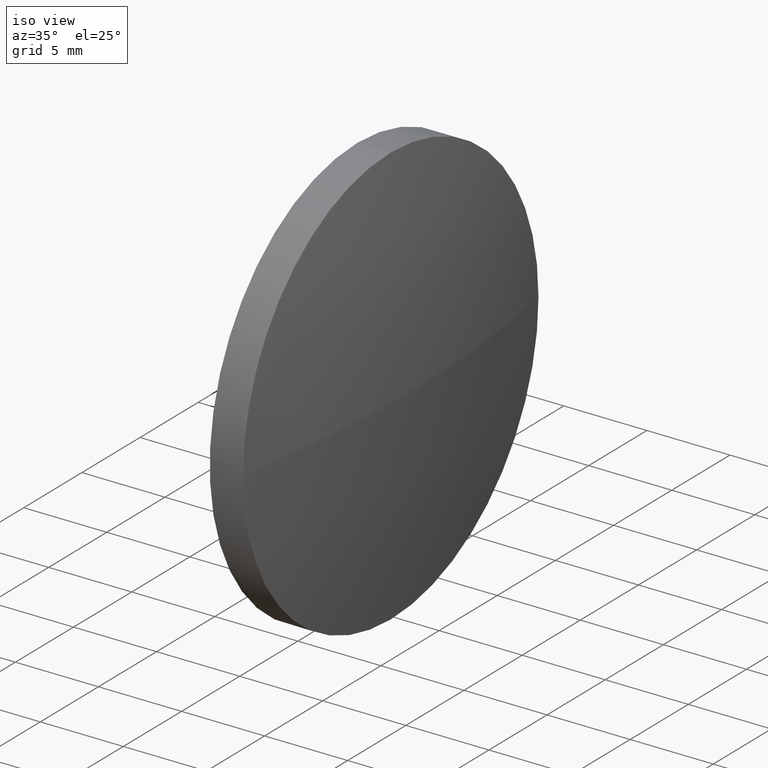
[diagram: clean part render]
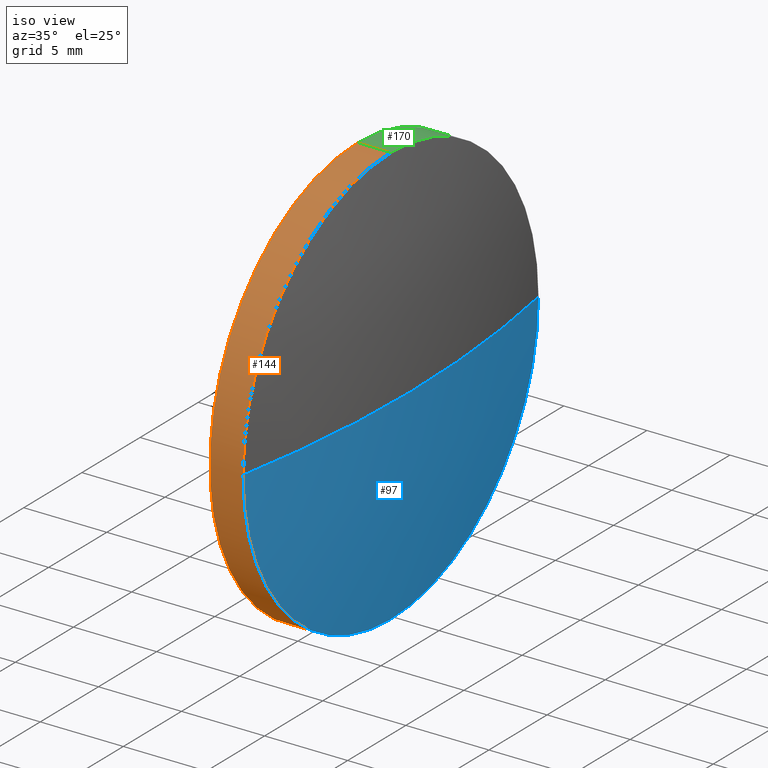
[diagram: same view with three faces highlighted in distinct colors, each labeled with its STEP entity id]
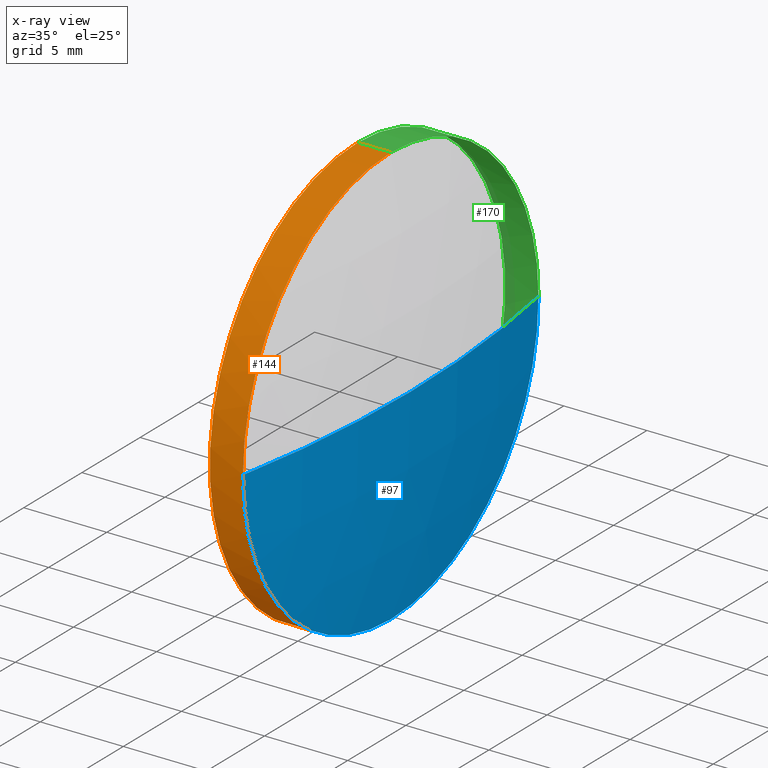
[diagram: x-ray of the same camera — body ghosted, the three highlighted faces saturated]
A machine part, iso view with three faces highlighted in distinct colors.
The next image is the same camera in x-ray (body ghosted, the three faces saturated) — at least one of them is partly hidden behind the body in this view.
Their STEP definitions:

[orange] entity #144 — the highlighted cylindrical surface (partial cylindrical patch) has radius 12.7 mm, axis along (-1, -0, -0).
#8 = CARTESIAN_POINT ( 'NONE',  ( 610.2638272771673700, 203.7470888787178500, 12.70000000000001700 ) ) ;
#9 = AXIS2_PLACEMENT_3D ( 'NONE', #133, #177, #21 ) ;
#10 = CARTESIAN_POINT ( 'NONE',  ( 617.9685008246222000, 203.7470888787178500, -12.70000000000001700 ) ) ;
#19 = CARTESIAN_POINT ( 'NONE',  ( 615.9685008246222000, 203.7470888787178500, 12.70000000000001700 ) ) ;
#21 = DIRECTION ( 'NONE',  ( 0.0000000000000000000, 0.0000000000000000000, 1.000000000000000000 ) ) ;
#27 = EDGE_CURVE ( 'NONE', #150, #35, #111, .T. ) ;
#29 = VECTOR ( 'NONE', #87, 1000.000000000000000 ) ;
#30 = ORIENTED_EDGE ( 'NONE', *, *, #40, .F. ) ;
#35 = VERTEX_POINT ( 'NONE', #179 ) ;
#37 = CARTESIAN_POINT ( 'NONE',  ( 617.9685008246222000, 203.7470888787178500, 0.0000000000000000000 ) ) ;
#39 = VECTOR ( 'NONE', #178, 1000.000000000000000 ) ;
#40 = EDGE_CURVE ( 'NONE', #43, #85, #156, .T. ) ;
#43 = VERTEX_POINT ( 'NONE', #48 ) ;
#48 = CARTESIAN_POINT ( 'NONE',  ( 615.9685008246222000, 203.7470888787178500, -12.70000000000001700 ) ) ;
#58 = ORIENTED_EDGE ( 'NONE', *, *, #112, .T. ) ;
#61 = DIRECTION ( 'NONE',  ( -1.000000000000000000, -0.0000000000000000000, -0.0000000000000000000 ) ) ;
#63 = AXIS2_PLACEMENT_3D ( 'NONE', #104, #118, #136 ) ;
#66 = LINE ( 'NONE', #86, #29 ) ;
#69 = EDGE_CURVE ( 'NONE', #114, #43, #66, .T. ) ;
#73 = LINE ( 'NONE', #8, #39 ) ;
#79 = CYLINDRICAL_SURFACE ( 'NONE', #116, 12.70000000000001700 ) ;
#85 = VERTEX_POINT ( 'NONE', #19 ) ;
#86 = CARTESIAN_POINT ( 'NONE',  ( 610.2638272771673700, 203.7470888787178500, -12.70000000000001700 ) ) ;
#87 = DIRECTION ( 'NONE',  ( -1.000000000000000000, -0.0000000000000000000, -0.0000000000000000000 ) ) ;
#104 = CARTESIAN_POINT ( 'NONE',  ( 617.9685008246222000, 203.7470888787178500, 0.0000000000000000000 ) ) ;
#106 = AXIS2_PLACEMENT_3D ( 'NONE', #37, #109, #153 ) ;
#109 = DIRECTION ( 'NONE',  ( -1.000000000000000000, -0.0000000000000000000, -0.0000000000000000000 ) ) ;
#111 = CIRCLE ( 'NONE', #63, 12.70000000000001700 ) ;
#112 = EDGE_CURVE ( 'NONE', #35, #85, #73, .T. ) ;
#114 = VERTEX_POINT ( 'NONE', #10 ) ;
#116 = AXIS2_PLACEMENT_3D ( 'NONE', #182, #61, #126 ) ;
#117 = EDGE_CURVE ( 'NONE', #114, #150, #159, .T. ) ;
#118 = DIRECTION ( 'NONE',  ( -1.000000000000000000, -0.0000000000000000000, -0.0000000000000000000 ) ) ;
#119 = ORIENTED_EDGE ( 'NONE', *, *, #117, .T. ) ;
#126 = DIRECTION ( 'NONE',  ( 0.0000000000000000000, 0.0000000000000000000, 1.000000000000000000 ) ) ;
#131 = ORIENTED_EDGE ( 'NONE', *, *, #27, .T. ) ;
#133 = CARTESIAN_POINT ( 'NONE',  ( 615.9685008246222000, 203.7470888787178500, 0.0000000000000000000 ) ) ;
#135 = FACE_OUTER_BOUND ( 'NONE', #172, .T. ) ;
#136 = DIRECTION ( 'NONE',  ( 0.0000000000000000000, 0.0000000000000000000, 1.000000000000000000 ) ) ;
#144 = ADVANCED_FACE ( 'NONE', ( #135 ), #79, .T. ) ;
#150 = VERTEX_POINT ( 'NONE', #152 ) ;
#152 = CARTESIAN_POINT ( 'NONE',  ( 617.9685008246222000, 191.0470888787178600, 0.0000000000000000000 ) ) ;
#153 = DIRECTION ( 'NONE',  ( 0.0000000000000000000, 0.0000000000000000000, 1.000000000000000000 ) ) ;
#156 = CIRCLE ( 'NONE', #9, 12.70000000000001700 ) ;
#158 = ORIENTED_EDGE ( 'NONE', *, *, #69, .F. ) ;
#159 = CIRCLE ( 'NONE', #106, 12.70000000000001700 ) ;
#172 = EDGE_LOOP ( 'NONE', ( #158, #119, #131, #58, #30 ) ) ;
#177 = DIRECTION ( 'NONE',  ( -1.000000000000000000, -0.0000000000000000000, -0.0000000000000000000 ) ) ;
#178 = DIRECTION ( 'NONE',  ( -1.000000000000000000, -0.0000000000000000000, -0.0000000000000000000 ) ) ;
#179 = CARTESIAN_POINT ( 'NONE',  ( 617.9685008246222000, 203.7470888787178500, 12.70000000000001700 ) ) ;
#182 = CARTESIAN_POINT ( 'NONE',  ( 610.2638272771673700, 203.7470888787178500, 0.0000000000000000000 ) ) ;

[blue] entity #97 — the highlighted spherical surface has radius 68.3639 mm.
#3 = CIRCLE ( 'NONE', #67, 68.36390756302523600 ) ;
#6 = DIRECTION ( 'NONE',  ( 0.0000000000000000000, -1.224646799147353200E-016, 1.000000000000000000 ) ) ;
#7 = ORIENTED_EDGE ( 'NONE', *, *, #141, .F. ) ;
#10 = CARTESIAN_POINT ( 'NONE',  ( 617.9685008246222000, 203.7470888787178500, -12.70000000000001700 ) ) ;
#13 = DIRECTION ( 'NONE',  ( -1.000000000000000000, -0.0000000000000000000, -0.0000000000000000000 ) ) ;
#15 = DIRECTION ( 'NONE',  ( -1.000000000000000000, 0.0000000000000000000, 0.0000000000000000000 ) ) ;
#17 = DIRECTION ( 'NONE',  ( 0.0000000000000000000, 0.0000000000000000000, -1.000000000000000000 ) ) ;
#20 = EDGE_CURVE ( 'NONE', #103, #181, #115, .T. ) ;
#33 = DIRECTION ( 'NONE',  ( 0.0000000000000000000, -1.000000000000000000, -1.224646799147353000E-016 ) ) ;
#37 = CARTESIAN_POINT ( 'NONE',  ( 617.9685008246222000, 203.7470888787178500, 0.0000000000000000000 ) ) ;
#38 = CARTESIAN_POINT ( 'NONE',  ( 617.9685008246222000, 203.7470888787178500, 0.0000000000000000000 ) ) ;
#45 = ORIENTED_EDGE ( 'NONE', *, *, #174, .T. ) ;
#49 = AXIS2_PLACEMENT_3D ( 'NONE', #72, #71, #147 ) ;
#52 = CARTESIAN_POINT ( 'NONE',  ( 617.9685008246222000, 216.4470888787178900, 1.555301434917140000E-015 ) ) ;
#59 = SPHERICAL_SURFACE ( 'NONE', #49, 68.36390756302522200 ) ;
#67 = AXIS2_PLACEMENT_3D ( 'NONE', #93, #17, #15 ) ;
#71 = DIRECTION ( 'NONE',  ( 0.0000000000000000000, 0.0000000000000000000, 1.000000000000000000 ) ) ;
#72 = CARTESIAN_POINT ( 'NONE',  ( 550.7945932615970200, 203.7470888787179000, 0.0000000000000000000 ) ) ;
#78 = ORIENTED_EDGE ( 'NONE', *, *, #117, .F. ) ;
#90 = CIRCLE ( 'NONE', #157, 12.70000000000001700 ) ;
#93 = CARTESIAN_POINT ( 'NONE',  ( 550.7945932615970200, 203.7470888787179000, 0.0000000000000000000 ) ) ;
#97 = ADVANCED_FACE ( 'NONE', ( #99 ), #59, .T. ) ;
#99 = FACE_OUTER_BOUND ( 'NONE', #107, .T. ) ;
#103 = VERTEX_POINT ( 'NONE', #164 ) ;
#106 = AXIS2_PLACEMENT_3D ( 'NONE', #37, #109, #153 ) ;
#107 = EDGE_LOOP ( 'NONE', ( #165, #45, #78, #7 ) ) ;
#109 = DIRECTION ( 'NONE',  ( -1.000000000000000000, -0.0000000000000000000, -0.0000000000000000000 ) ) ;
#114 = VERTEX_POINT ( 'NONE', #10 ) ;
#115 = CIRCLE ( 'NONE', #154, 68.36390756302523600 ) ;
#117 = EDGE_CURVE ( 'NONE', #114, #150, #159, .T. ) ;
#124 = DIRECTION ( 'NONE',  ( 0.0000000000000000000, 0.0000000000000000000, 1.000000000000000000 ) ) ;
#137 = CARTESIAN_POINT ( 'NONE',  ( 550.7945932615970200, 203.7470888787179000, 0.0000000000000000000 ) ) ;
#141 = EDGE_CURVE ( 'NONE', #181, #114, #90, .T. ) ;
#147 = DIRECTION ( 'NONE',  ( 0.0000000000000000000, -1.000000000000000000, 0.0000000000000000000 ) ) ;
#150 = VERTEX_POINT ( 'NONE', #152 ) ;
#152 = CARTESIAN_POINT ( 'NONE',  ( 617.9685008246222000, 191.0470888787178600, 0.0000000000000000000 ) ) ;
#153 = DIRECTION ( 'NONE',  ( 0.0000000000000000000, 0.0000000000000000000, 1.000000000000000000 ) ) ;
#154 = AXIS2_PLACEMENT_3D ( 'NONE', #137, #6, #33 ) ;
#157 = AXIS2_PLACEMENT_3D ( 'NONE', #38, #13, #124 ) ;
#159 = CIRCLE ( 'NONE', #106, 12.70000000000001700 ) ;
#164 = CARTESIAN_POINT ( 'NONE',  ( 619.1585008246222500, 203.7470888787179000, 0.0000000000000000000 ) ) ;
#165 = ORIENTED_EDGE ( 'NONE', *, *, #20, .F. ) ;
#174 = EDGE_CURVE ( 'NONE', #103, #150, #3, .T. ) ;
#181 = VERTEX_POINT ( 'NONE', #52 ) ;

[green] entity #170 — the highlighted cylindrical surface (partial cylindrical patch) has radius 12.7 mm, axis along (-1, -0, -0).
#2 = EDGE_LOOP ( 'NONE', ( #68, #12, #100, #22, #185 ) ) ;
#8 = CARTESIAN_POINT ( 'NONE',  ( 610.2638272771673700, 203.7470888787178500, 12.70000000000001700 ) ) ;
#10 = CARTESIAN_POINT ( 'NONE',  ( 617.9685008246222000, 203.7470888787178500, -12.70000000000001700 ) ) ;
#12 = ORIENTED_EDGE ( 'NONE', *, *, #69, .T. ) ;
#13 = DIRECTION ( 'NONE',  ( -1.000000000000000000, -0.0000000000000000000, -0.0000000000000000000 ) ) ;
#16 = CARTESIAN_POINT ( 'NONE',  ( 610.2638272771673700, 203.7470888787178500, 0.0000000000000000000 ) ) ;
#18 = FACE_OUTER_BOUND ( 'NONE', #2, .T. ) ;
#19 = CARTESIAN_POINT ( 'NONE',  ( 615.9685008246222000, 203.7470888787178500, 12.70000000000001700 ) ) ;
#22 = ORIENTED_EDGE ( 'NONE', *, *, #112, .F. ) ;
#29 = VECTOR ( 'NONE', #87, 1000.000000000000000 ) ;
#35 = VERTEX_POINT ( 'NONE', #179 ) ;
#38 = CARTESIAN_POINT ( 'NONE',  ( 617.9685008246222000, 203.7470888787178500, 0.0000000000000000000 ) ) ;
#39 = VECTOR ( 'NONE', #178, 1000.000000000000000 ) ;
#43 = VERTEX_POINT ( 'NONE', #48 ) ;
#48 = CARTESIAN_POINT ( 'NONE',  ( 615.9685008246222000, 203.7470888787178500, -12.70000000000001700 ) ) ;
#50 = DIRECTION ( 'NONE',  ( -1.000000000000000000, -0.0000000000000000000, -0.0000000000000000000 ) ) ;
#52 = CARTESIAN_POINT ( 'NONE',  ( 617.9685008246222000, 216.4470888787178900, 1.555301434917140000E-015 ) ) ;
#55 = CYLINDRICAL_SURFACE ( 'NONE', #139, 12.70000000000001700 ) ;
#56 = CIRCLE ( 'NONE', #65, 12.70000000000001700 ) ;
#65 = AXIS2_PLACEMENT_3D ( 'NONE', #134, #162, #70 ) ;
#66 = LINE ( 'NONE', #86, #29 ) ;
#68 = ORIENTED_EDGE ( 'NONE', *, *, #141, .T. ) ;
#69 = EDGE_CURVE ( 'NONE', #114, #43, #66, .T. ) ;
#70 = DIRECTION ( 'NONE',  ( 0.0000000000000000000, 0.0000000000000000000, 1.000000000000000000 ) ) ;
#73 = LINE ( 'NONE', #8, #39 ) ;
#75 = DIRECTION ( 'NONE',  ( 0.0000000000000000000, 0.0000000000000000000, 1.000000000000000000 ) ) ;
#85 = VERTEX_POINT ( 'NONE', #19 ) ;
#86 = CARTESIAN_POINT ( 'NONE',  ( 610.2638272771673700, 203.7470888787178500, -12.70000000000001700 ) ) ;
#87 = DIRECTION ( 'NONE',  ( -1.000000000000000000, -0.0000000000000000000, -0.0000000000000000000 ) ) ;
#90 = CIRCLE ( 'NONE', #157, 12.70000000000001700 ) ;
#98 = EDGE_CURVE ( 'NONE', #35, #181, #56, .T. ) ;
#100 = ORIENTED_EDGE ( 'NONE', *, *, #180, .F. ) ;
#105 = DIRECTION ( 'NONE',  ( 0.0000000000000000000, 0.0000000000000000000, 1.000000000000000000 ) ) ;
#112 = EDGE_CURVE ( 'NONE', #35, #85, #73, .T. ) ;
#114 = VERTEX_POINT ( 'NONE', #10 ) ;
#124 = DIRECTION ( 'NONE',  ( 0.0000000000000000000, 0.0000000000000000000, 1.000000000000000000 ) ) ;
#129 = AXIS2_PLACEMENT_3D ( 'NONE', #168, #50, #75 ) ;
#134 = CARTESIAN_POINT ( 'NONE',  ( 617.9685008246222000, 203.7470888787178500, 0.0000000000000000000 ) ) ;
#139 = AXIS2_PLACEMENT_3D ( 'NONE', #16, #143, #105 ) ;
#141 = EDGE_CURVE ( 'NONE', #181, #114, #90, .T. ) ;
#143 = DIRECTION ( 'NONE',  ( -1.000000000000000000, -0.0000000000000000000, -0.0000000000000000000 ) ) ;
#157 = AXIS2_PLACEMENT_3D ( 'NONE', #38, #13, #124 ) ;
#162 = DIRECTION ( 'NONE',  ( -1.000000000000000000, -0.0000000000000000000, -0.0000000000000000000 ) ) ;
#168 = CARTESIAN_POINT ( 'NONE',  ( 615.9685008246222000, 203.7470888787178500, 0.0000000000000000000 ) ) ;
#170 = ADVANCED_FACE ( 'NONE', ( #18 ), #55, .T. ) ;
#178 = DIRECTION ( 'NONE',  ( -1.000000000000000000, -0.0000000000000000000, -0.0000000000000000000 ) ) ;
#179 = CARTESIAN_POINT ( 'NONE',  ( 617.9685008246222000, 203.7470888787178500, 12.70000000000001700 ) ) ;
#180 = EDGE_CURVE ( 'NONE', #85, #43, #186, .T. ) ;
#181 = VERTEX_POINT ( 'NONE', #52 ) ;
#185 = ORIENTED_EDGE ( 'NONE', *, *, #98, .T. ) ;
#186 = CIRCLE ( 'NONE', #129, 12.70000000000001700 ) ;